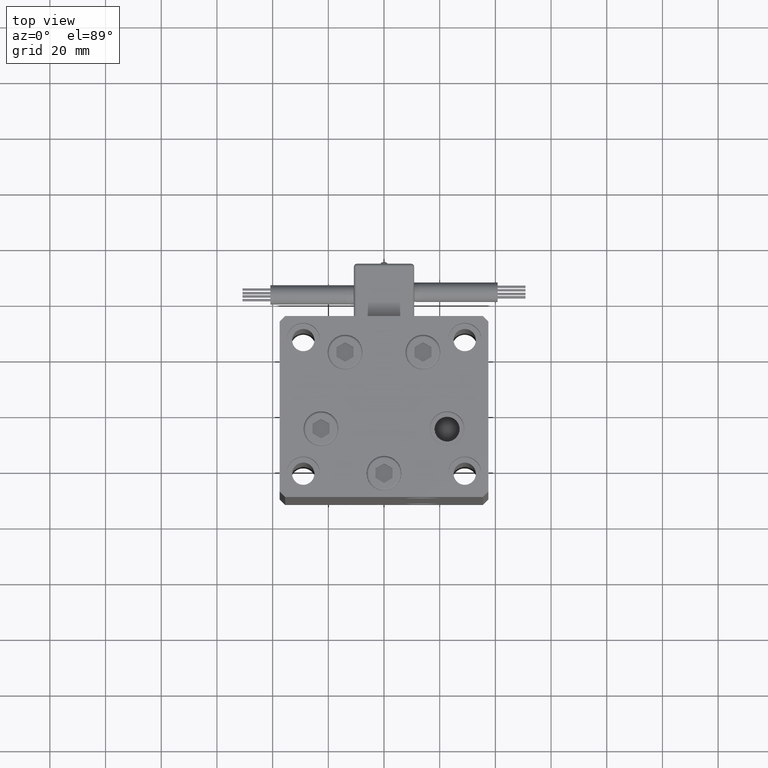
[diagram: clean part render]
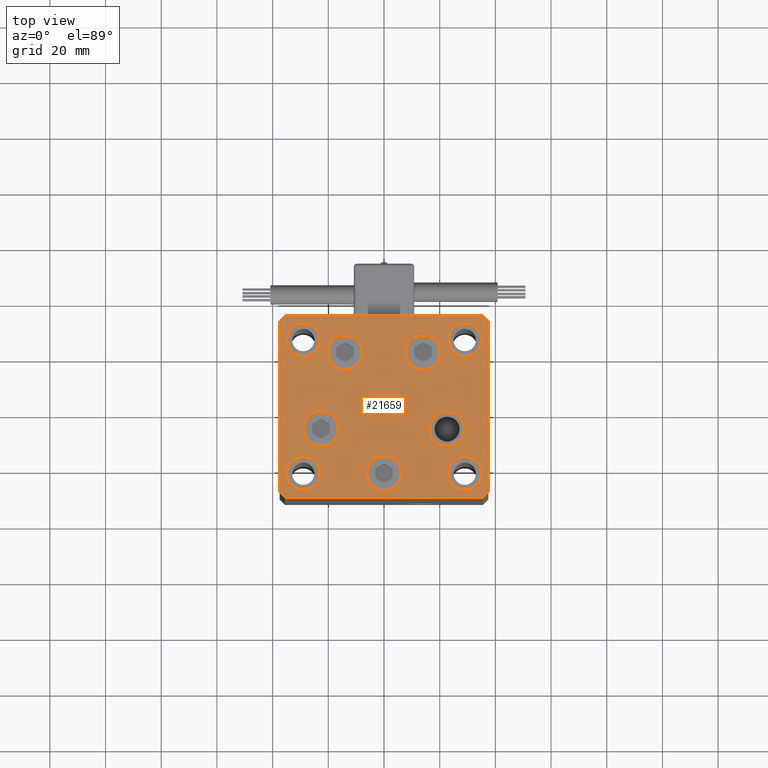
[diagram: same view with one face highlighted and labeled with its STEP entity id]
A machine part, top view. The second image highlights one B-rep face of the part: STEP entity #21659.
In plain terms, the highlighted planar face has unit normal (0, 0, 1).
Its self-contained STEP definition (entity closure, byte-faithful):
#126 = ORIENTED_EDGE ( 'NONE', *, *, #9208, .T. ) ;
#290 = CARTESIAN_POINT ( 'NONE',  ( 7.741068579633223479, 19.50000000000000000, 0.000000000000000000 ) ) ;
#913 = EDGE_CURVE ( 'NONE', #22626, #6738, #15562, .T. ) ;
#966 = CARTESIAN_POINT ( 'NONE',  ( 29.00000000000001066, 24.00000000000000711, 0.000000000000000000 ) ) ;
#992 = EDGE_LOOP ( 'NONE', ( #22904, #38191, #3899, #44121, #21908, #38364, #21112, #2139 ) ) ;
#1396 = CARTESIAN_POINT ( 'NONE',  ( 13.99106857963322348, 19.50000000000000000, 0.000000000000000000 ) ) ;
#1410 = CARTESIAN_POINT ( 'NONE',  ( 23.00000000000001066, 24.00000000000000711, 0.000000000000000000 ) ) ;
#1493 = EDGE_CURVE ( 'NONE', #12555, #18939, #7660, .T. ) ;
#1679 = DIRECTION ( 'NONE',  ( 0.000000000000000000, -0.000000000000000000, -1.000000000000000000 ) ) ;
#1937 = DIRECTION ( 'NONE',  ( 1.000000000000000000, 0.000000000000000000, 0.000000000000000000 ) ) ;
#1947 = VERTEX_POINT ( 'NONE', #28567 ) ;
#1973 = CARTESIAN_POINT ( 'NONE',  ( -35.49999999999998579, -32.50000000000001421, 0.000000000000000000 ) ) ;
#1998 = CARTESIAN_POINT ( 'NONE',  ( -28.87741699796952233, -8.000000000000005329, 0.000000000000000000 ) ) ;
#2139 = ORIENTED_EDGE ( 'NONE', *, *, #35726, .T. ) ;
#2685 = VERTEX_POINT ( 'NONE', #290 ) ;
#2789 = CARTESIAN_POINT ( 'NONE',  ( 35.49999999999992184, 32.50000000000000711, 0.000000000000000000 ) ) ;
#2837 = CARTESIAN_POINT ( 'NONE',  ( 2.939152317953647500E-15, -24.00000000000000000, 0.000000000000000000 ) ) ;
#2865 = VERTEX_POINT ( 'NONE', #23419 ) ;
#3075 = FACE_BOUND ( 'NONE', #47109, .T. ) ;
#3116 = DIRECTION ( 'NONE',  ( 0.000000000000000000, 0.000000000000000000, 1.000000000000000000 ) ) ;
#3282 = CIRCLE ( 'NONE', #26727, 6.250000000000001776 ) ;
#3424 = VERTEX_POINT ( 'NONE', #26011 ) ;
#3604 = EDGE_LOOP ( 'NONE', ( #26764, #34467 ) ) ;
#3899 = ORIENTED_EDGE ( 'NONE', *, *, #27531, .T. ) ;
#4019 = EDGE_LOOP ( 'NONE', ( #40567, #6898 ) ) ;
#4020 = DIRECTION ( 'NONE',  ( 1.000000000000000000, 9.773090005503140331E-17, 0.000000000000000000 ) ) ;
#4398 = CARTESIAN_POINT ( 'NONE',  ( -13.99106857963322703, 19.49999999999999645, 0.000000000000000000 ) ) ;
#4806 = AXIS2_PLACEMENT_3D ( 'NONE', #20236, #37096, #1937 ) ;
#4877 = DIRECTION ( 'NONE',  ( 1.000000000000000000, 0.000000000000000000, 0.000000000000000000 ) ) ;
#5314 = CARTESIAN_POINT ( 'NONE',  ( -7.741068579633227031, 19.49999999999999645, 0.000000000000000000 ) ) ;
#5589 = EDGE_CURVE ( 'NONE', #53230, #21700, #44348, .T. ) ;
#5916 = VECTOR ( 'NONE', #21865, 999.9999999999998863 ) ;
#6130 = AXIS2_PLACEMENT_3D ( 'NONE', #53208, #3116, #48029 ) ;
#6601 = ORIENTED_EDGE ( 'NONE', *, *, #11821, .F. ) ;
#6738 = VERTEX_POINT ( 'NONE', #39645 ) ;
#6898 = ORIENTED_EDGE ( 'NONE', *, *, #37627, .T. ) ;
#7147 = FACE_OUTER_BOUND ( 'NONE', #992, .T. ) ;
#7399 = CIRCLE ( 'NONE', #4806, 6.250000000000001776 ) ;
#7660 = CIRCLE ( 'NONE', #37252, 6.250000000000001776 ) ;
#7689 = CARTESIAN_POINT ( 'NONE',  ( 37.50000000000001421, -30.50000000000000711, 0.000000000000000000 ) ) ;
#8098 = AXIS2_PLACEMENT_3D ( 'NONE', #27835, #51328, #36253 ) ;
#8157 = EDGE_CURVE ( 'NONE', #19643, #12923, #33125, .T. ) ;
#9003 = DIRECTION ( 'NONE',  ( 0.000000000000000000, -0.000000000000000000, -1.000000000000000000 ) ) ;
#9208 = EDGE_CURVE ( 'NONE', #50544, #1947, #15755, .T. ) ;
#9316 = LINE ( 'NONE', #25938, #5916 ) ;
#10128 = DIRECTION ( 'NONE',  ( -1.000000000000000000, -1.954618001100629052E-16, 0.000000000000000000 ) ) ;
#10415 = AXIS2_PLACEMENT_3D ( 'NONE', #34804, #39151, #17952 ) ;
#10484 = VERTEX_POINT ( 'NONE', #35301 ) ;
#10975 = FACE_BOUND ( 'NONE', #42780, .T. ) ;
#11077 = CARTESIAN_POINT ( 'NONE',  ( -29.00000000000001066, -23.99999999999999289, 0.000000000000000000 ) ) ;
#11247 = FACE_BOUND ( 'NONE', #4019, .T. ) ;
#11344 = VECTOR ( 'NONE', #53811, 1000.000000000000114 ) ;
#11734 = CIRCLE ( 'NONE', #48212, 6.250000000000000000 ) ;
#11771 = AXIS2_PLACEMENT_3D ( 'NONE', #11077, #22795, #39374 ) ;
#11821 = EDGE_CURVE ( 'NONE', #12923, #19643, #34112, .T. ) ;
#11857 = ORIENTED_EDGE ( 'NONE', *, *, #37386, .F. ) ;
#12084 = VECTOR ( 'NONE', #4020, 1000.000000000000000 ) ;
#12322 = DIRECTION ( 'NONE',  ( 0.000000000000000000, 0.000000000000000000, 1.000000000000000000 ) ) ;
#12555 = VERTEX_POINT ( 'NONE', #1998 ) ;
#12891 = DIRECTION ( 'NONE',  ( 0.000000000000000000, -0.000000000000000000, -1.000000000000000000 ) ) ;
#12923 = VERTEX_POINT ( 'NONE', #19642 ) ;
#13056 = CARTESIAN_POINT ( 'NONE',  ( 29.00000000000001066, 24.00000000000000711, 0.000000000000000000 ) ) ;
#13937 = DIRECTION ( 'NONE',  ( 0.000000000000000000, -0.000000000000000000, -1.000000000000000000 ) ) ;
#14249 = CIRCLE ( 'NONE', #15136, 6.250000000000001776 ) ;
#14362 = AXIS2_PLACEMENT_3D ( 'NONE', #2837, #51579, #30888 ) ;
#14695 = EDGE_CURVE ( 'NONE', #18939, #12555, #14249, .T. ) ;
#14798 = FACE_BOUND ( 'NONE', #34604, .T. ) ;
#15136 = AXIS2_PLACEMENT_3D ( 'NONE', #51348, #47238, #38278 ) ;
#15274 = AXIS2_PLACEMENT_3D ( 'NONE', #31390, #40365, #27317 ) ;
#15562 = LINE ( 'NONE', #39772, #20707 ) ;
#15682 = CARTESIAN_POINT ( 'NONE',  ( -35.50000000000002842, 32.49999999999999289, 0.000000000000000000 ) ) ;
#15755 = CIRCLE ( 'NONE', #17506, 6.250000000000000000 ) ;
#15762 = DIRECTION ( 'NONE',  ( 0.000000000000000000, -0.000000000000000000, -1.000000000000000000 ) ) ;
#16066 = EDGE_CURVE ( 'NONE', #21780, #2685, #17764, .T. ) ;
#16394 = CIRCLE ( 'NONE', #19002, 5.999999999999998224 ) ;
#16570 = DIRECTION ( 'NONE',  ( 1.000000000000000000, 0.000000000000000000, 0.000000000000000000 ) ) ;
#16745 = EDGE_CURVE ( 'NONE', #2865, #28268, #11734, .T. ) ;
#16753 = VERTEX_POINT ( 'NONE', #1410 ) ;
#17099 = VERTEX_POINT ( 'NONE', #39747 ) ;
#17506 = AXIS2_PLACEMENT_3D ( 'NONE', #20124, #19851, #36443 ) ;
#17596 = DIRECTION ( 'NONE',  ( 0.000000000000000000, 0.000000000000000000, 1.000000000000000000 ) ) ;
#17612 = AXIS2_PLACEMENT_3D ( 'NONE', #40908, #12322, #41439 ) ;
#17764 = CIRCLE ( 'NONE', #26471, 6.250000000000000000 ) ;
#17843 = VECTOR ( 'NONE', #44153, 1000.000000000000000 ) ;
#17879 = CIRCLE ( 'NONE', #11771, 5.999999999999998224 ) ;
#17926 = CARTESIAN_POINT ( 'NONE',  ( 28.87741699796952233, -8.000000000000000000, 0.000000000000000000 ) ) ;
#17952 = DIRECTION ( 'NONE',  ( 1.000000000000000000, 0.000000000000000000, 0.000000000000000000 ) ) ;
#18538 = CIRCLE ( 'NONE', #8098, 6.000000000000005329 ) ;
#18851 = LINE ( 'NONE', #51788, #27472 ) ;
#18875 = AXIS2_PLACEMENT_3D ( 'NONE', #28822, #15762, #16570 ) ;
#18883 = FACE_BOUND ( 'NONE', #52965, .T. ) ;
#18939 = VERTEX_POINT ( 'NONE', #44538 ) ;
#19002 = AXIS2_PLACEMENT_3D ( 'NONE', #42810, #38455, #35168 ) ;
#19162 = FACE_BOUND ( 'NONE', #30276, .T. ) ;
#19642 = CARTESIAN_POINT ( 'NONE',  ( -35.00000000000000711, 24.00000000000000711, 0.000000000000000000 ) ) ;
#19643 = VERTEX_POINT ( 'NONE', #26736 ) ;
#19682 = CARTESIAN_POINT ( 'NONE',  ( 23.00000000000001066, -23.99999999999999289, 0.000000000000000000 ) ) ;
#19851 = DIRECTION ( 'NONE',  ( 0.000000000000000000, -0.000000000000000000, -1.000000000000000000 ) ) ;
#20124 = CARTESIAN_POINT ( 'NONE',  ( -13.99106857963322703, 19.49999999999999645, 0.000000000000000000 ) ) ;
#20236 = CARTESIAN_POINT ( 'NONE',  ( 22.62741699796951877, -8.000000000000000000, 0.000000000000000000 ) ) ;
#20333 = LINE ( 'NONE', #36922, #11344 ) ;
#20493 = DIRECTION ( 'NONE',  ( 0.7071067811865487940, 0.7071067811865463515, 0.000000000000000000 ) ) ;
#20707 = VECTOR ( 'NONE', #52314, 1000.000000000000000 ) ;
#20919 = LINE ( 'NONE', #24727, #12084 ) ;
#21008 = CARTESIAN_POINT ( 'NONE',  ( 35.00000000000001421, 24.00000000000000711, 0.000000000000000000 ) ) ;
#21068 = CARTESIAN_POINT ( 'NONE',  ( -22.62741699796951877, -8.000000000000005329, 0.000000000000000000 ) ) ;
#21112 = ORIENTED_EDGE ( 'NONE', *, *, #24052, .T. ) ;
#21644 = ORIENTED_EDGE ( 'NONE', *, *, #43587, .T. ) ;
#21659 = ADVANCED_FACE ( 'NONE', ( #18883, #14798, #19162, #11247, #27586, #3075, #51819, #22699, #10975, #7147 ), #44454, .T. ) ;
#21700 = VERTEX_POINT ( 'NONE', #49330 ) ;
#21764 = ORIENTED_EDGE ( 'NONE', *, *, #39750, .T. ) ;
#21780 = VERTEX_POINT ( 'NONE', #46580 ) ;
#21865 = DIRECTION ( 'NONE',  ( -0.7071067811865482389, 0.7071067811865469066, 0.000000000000000000 ) ) ;
#21878 = ORIENTED_EDGE ( 'NONE', *, *, #16066, .T. ) ;
#21908 = ORIENTED_EDGE ( 'NONE', *, *, #46356, .T. ) ;
#22090 = VERTEX_POINT ( 'NONE', #24725 ) ;
#22626 = VERTEX_POINT ( 'NONE', #7689 ) ;
#22699 = FACE_BOUND ( 'NONE', #46598, .T. ) ;
#22795 = DIRECTION ( 'NONE',  ( 0.000000000000000000, 0.000000000000000000, 1.000000000000000000 ) ) ;
#22904 = ORIENTED_EDGE ( 'NONE', *, *, #50893, .T. ) ;
#23268 = CARTESIAN_POINT ( 'NONE',  ( -37.50000000000001421, 30.49999999999998579, 0.000000000000000000 ) ) ;
#23419 = CARTESIAN_POINT ( 'NONE',  ( -6.249999999999997335, -24.00000000000000000, 0.000000000000000000 ) ) ;
#24052 = EDGE_CURVE ( 'NONE', #17099, #34328, #37160, .T. ) ;
#24601 = CARTESIAN_POINT ( 'NONE',  ( 2.939152317953647500E-15, -24.00000000000000000, 0.000000000000000000 ) ) ;
#24658 = DIRECTION ( 'NONE',  ( -0.7071067811865426878, -0.7071067811865524577, 0.000000000000000000 ) ) ;
#24725 = CARTESIAN_POINT ( 'NONE',  ( 16.37741699796951877, -8.000000000000000000, 0.000000000000000000 ) ) ;
#24727 = CARTESIAN_POINT ( 'NONE',  ( -35.49999999999998579, -32.50000000000001421, 0.000000000000000000 ) ) ;
#25367 = DIRECTION ( 'NONE',  ( 1.000000000000000000, 0.000000000000000000, 0.000000000000000000 ) ) ;
#25938 = CARTESIAN_POINT ( 'NONE',  ( 37.49999999999992184, 30.50000000000001066, 0.000000000000000000 ) ) ;
#26011 = CARTESIAN_POINT ( 'NONE',  ( -35.00000000000000711, -23.99999999999999289, 0.000000000000000000 ) ) ;
#26198 = DIRECTION ( 'NONE',  ( 1.000000000000000000, 0.000000000000000000, 0.000000000000000000 ) ) ;
#26471 = AXIS2_PLACEMENT_3D ( 'NONE', #1396, #13937, #34873 ) ;
#26727 = AXIS2_PLACEMENT_3D ( 'NONE', #51977, #44075, #31279 ) ;
#26736 = CARTESIAN_POINT ( 'NONE',  ( -23.00000000000001421, 24.00000000000000711, 0.000000000000000000 ) ) ;
#26764 = ORIENTED_EDGE ( 'NONE', *, *, #1493, .T. ) ;
#26989 = ORIENTED_EDGE ( 'NONE', *, *, #27010, .F. ) ;
#27010 = EDGE_CURVE ( 'NONE', #41733, #16753, #46798, .T. ) ;
#27317 = DIRECTION ( 'NONE',  ( 1.000000000000000000, 0.000000000000000000, 0.000000000000000000 ) ) ;
#27472 = VECTOR ( 'NONE', #10128, 1000.000000000000000 ) ;
#27531 = EDGE_CURVE ( 'NONE', #40107, #22626, #49057, .T. ) ;
#27586 = FACE_BOUND ( 'NONE', #3604, .T. ) ;
#27835 = CARTESIAN_POINT ( 'NONE',  ( 29.00000000000001066, -23.99999999999999289, 0.000000000000000000 ) ) ;
#28052 = EDGE_CURVE ( 'NONE', #29926, #40107, #20919, .T. ) ;
#28268 = VERTEX_POINT ( 'NONE', #43721 ) ;
#28393 = CARTESIAN_POINT ( 'NONE',  ( 35.50000000000000711, -32.50000000000000711, 0.000000000000000000 ) ) ;
#28567 = CARTESIAN_POINT ( 'NONE',  ( -20.24106857963322881, 19.49999999999999645, 0.000000000000000000 ) ) ;
#28822 = CARTESIAN_POINT ( 'NONE',  ( 13.99106857963322348, 19.50000000000000000, 0.000000000000000000 ) ) ;
#29340 = CIRCLE ( 'NONE', #18875, 6.250000000000000000 ) ;
#29454 = EDGE_CURVE ( 'NONE', #16753, #41733, #31227, .T. ) ;
#29495 = DIRECTION ( 'NONE',  ( 1.000000000000000000, 0.000000000000000000, 0.000000000000000000 ) ) ;
#29926 = VERTEX_POINT ( 'NONE', #1973 ) ;
#29992 = EDGE_LOOP ( 'NONE', ( #31967, #11857 ) ) ;
#30276 = EDGE_LOOP ( 'NONE', ( #40693, #21764 ) ) ;
#30885 = CIRCLE ( 'NONE', #14362, 6.250000000000000000 ) ;
#30888 = DIRECTION ( 'NONE',  ( 1.000000000000000000, 0.000000000000000000, 0.000000000000000000 ) ) ;
#31008 = CARTESIAN_POINT ( 'NONE',  ( 35.50000000000000711, -32.50000000000000711, 0.000000000000000000 ) ) ;
#31089 = CARTESIAN_POINT ( 'NONE',  ( -37.50000000000001421, 30.49999999999998579, 0.000000000000000000 ) ) ;
#31227 = CIRCLE ( 'NONE', #47735, 6.000000000000005329 ) ;
#31279 = DIRECTION ( 'NONE',  ( 1.000000000000000000, 0.000000000000000000, 0.000000000000000000 ) ) ;
#31390 = CARTESIAN_POINT ( 'NONE',  ( 0.000000000000000000, 0.000000000000000000, 0.000000000000000000 ) ) ;
#31959 = EDGE_CURVE ( 'NONE', #21700, #53230, #18538, .T. ) ;
#31967 = ORIENTED_EDGE ( 'NONE', *, *, #47172, .F. ) ;
#33125 = CIRCLE ( 'NONE', #6130, 5.999999999999998224 ) ;
#34112 = CIRCLE ( 'NONE', #17612, 5.999999999999998224 ) ;
#34328 = VERTEX_POINT ( 'NONE', #23268 ) ;
#34467 = ORIENTED_EDGE ( 'NONE', *, *, #14695, .T. ) ;
#34604 = EDGE_LOOP ( 'NONE', ( #21644, #21878 ) ) ;
#34804 = CARTESIAN_POINT ( 'NONE',  ( 29.00000000000001066, -23.99999999999999289, 0.000000000000000000 ) ) ;
#34873 = DIRECTION ( 'NONE',  ( 1.000000000000000000, 0.000000000000000000, 0.000000000000000000 ) ) ;
#35168 = DIRECTION ( 'NONE',  ( 1.000000000000000000, 0.000000000000000000, 0.000000000000000000 ) ) ;
#35265 = ORIENTED_EDGE ( 'NONE', *, *, #31959, .F. ) ;
#35301 = CARTESIAN_POINT ( 'NONE',  ( -37.49999999999998579, -30.50000000000001421, 0.000000000000000000 ) ) ;
#35726 = EDGE_CURVE ( 'NONE', #34328, #10484, #44420, .T. ) ;
#36253 = DIRECTION ( 'NONE',  ( 1.000000000000000000, 0.000000000000000000, 0.000000000000000000 ) ) ;
#36362 = VECTOR ( 'NONE', #20493, 1000.000000000000000 ) ;
#36443 = DIRECTION ( 'NONE',  ( 1.000000000000000000, 0.000000000000000000, 0.000000000000000000 ) ) ;
#36603 = ORIENTED_EDGE ( 'NONE', *, *, #5589, .F. ) ;
#36922 = CARTESIAN_POINT ( 'NONE',  ( -37.49999999999998579, -30.50000000000001421, 0.000000000000000000 ) ) ;
#37093 = VECTOR ( 'NONE', #24658, 1000.000000000000000 ) ;
#37096 = DIRECTION ( 'NONE',  ( 0.000000000000000000, -0.000000000000000000, -1.000000000000000000 ) ) ;
#37160 = LINE ( 'NONE', #15682, #37093 ) ;
#37252 = AXIS2_PLACEMENT_3D ( 'NONE', #21068, #12891, #29495 ) ;
#37386 = EDGE_CURVE ( 'NONE', #3424, #50867, #17879, .T. ) ;
#37627 = EDGE_CURVE ( 'NONE', #28268, #2865, #30885, .T. ) ;
#37888 = ORIENTED_EDGE ( 'NONE', *, *, #8157, .F. ) ;
#37921 = EDGE_CURVE ( 'NONE', #53309, #17099, #18851, .T. ) ;
#38191 = ORIENTED_EDGE ( 'NONE', *, *, #28052, .T. ) ;
#38278 = DIRECTION ( 'NONE',  ( 1.000000000000000000, 0.000000000000000000, 0.000000000000000000 ) ) ;
#38364 = ORIENTED_EDGE ( 'NONE', *, *, #37921, .T. ) ;
#38455 = DIRECTION ( 'NONE',  ( 0.000000000000000000, 0.000000000000000000, 1.000000000000000000 ) ) ;
#39058 = CIRCLE ( 'NONE', #53003, 6.250000000000000000 ) ;
#39151 = DIRECTION ( 'NONE',  ( 0.000000000000000000, 0.000000000000000000, 1.000000000000000000 ) ) ;
#39213 = ORIENTED_EDGE ( 'NONE', *, *, #52493, .T. ) ;
#39374 = DIRECTION ( 'NONE',  ( 1.000000000000000000, 0.000000000000000000, 0.000000000000000000 ) ) ;
#39645 = CARTESIAN_POINT ( 'NONE',  ( 37.49999999999992184, 30.50000000000001066, 0.000000000000000000 ) ) ;
#39747 = CARTESIAN_POINT ( 'NONE',  ( -35.50000000000002842, 32.49999999999999289, 0.000000000000000000 ) ) ;
#39750 = EDGE_CURVE ( 'NONE', #42117, #22090, #7399, .T. ) ;
#39772 = CARTESIAN_POINT ( 'NONE',  ( 37.50000000000001421, -30.50000000000000711, 0.000000000000000000 ) ) ;
#40107 = VERTEX_POINT ( 'NONE', #31008 ) ;
#40365 = DIRECTION ( 'NONE',  ( -0.000000000000000000, 0.000000000000000000, 1.000000000000000000 ) ) ;
#40567 = ORIENTED_EDGE ( 'NONE', *, *, #16745, .T. ) ;
#40693 = ORIENTED_EDGE ( 'NONE', *, *, #45596, .T. ) ;
#40908 = CARTESIAN_POINT ( 'NONE',  ( -29.00000000000001066, 24.00000000000000711, 0.000000000000000000 ) ) ;
#41276 = CARTESIAN_POINT ( 'NONE',  ( -23.00000000000001421, -23.99999999999999289, 0.000000000000000000 ) ) ;
#41439 = DIRECTION ( 'NONE',  ( 1.000000000000000000, 0.000000000000000000, 0.000000000000000000 ) ) ;
#41733 = VERTEX_POINT ( 'NONE', #21008 ) ;
#42117 = VERTEX_POINT ( 'NONE', #17926 ) ;
#42173 = DIRECTION ( 'NONE',  ( 0.000000000000000000, 0.000000000000000000, 1.000000000000000000 ) ) ;
#42780 = EDGE_LOOP ( 'NONE', ( #26989, #48194 ) ) ;
#42810 = CARTESIAN_POINT ( 'NONE',  ( -29.00000000000001066, -23.99999999999999289, 0.000000000000000000 ) ) ;
#43587 = EDGE_CURVE ( 'NONE', #2685, #21780, #29340, .T. ) ;
#43721 = CARTESIAN_POINT ( 'NONE',  ( 6.250000000000002665, -24.00000000000000000, 0.000000000000000000 ) ) ;
#44075 = DIRECTION ( 'NONE',  ( 0.000000000000000000, -0.000000000000000000, -1.000000000000000000 ) ) ;
#44121 = ORIENTED_EDGE ( 'NONE', *, *, #913, .T. ) ;
#44153 = DIRECTION ( 'NONE',  ( 4.550094363217855288E-16, -1.000000000000000000, 0.000000000000000000 ) ) ;
#44348 = CIRCLE ( 'NONE', #10415, 6.000000000000005329 ) ;
#44420 = LINE ( 'NONE', #31089, #17843 ) ;
#44454 = PLANE ( 'NONE',  #15274 ) ;
#44538 = CARTESIAN_POINT ( 'NONE',  ( -16.37741699796951877, -8.000000000000005329, 0.000000000000000000 ) ) ;
#45061 = AXIS2_PLACEMENT_3D ( 'NONE', #13056, #42173, #4877 ) ;
#45596 = EDGE_CURVE ( 'NONE', #22090, #42117, #3282, .T. ) ;
#46356 = EDGE_CURVE ( 'NONE', #6738, #53309, #9316, .T. ) ;
#46580 = CARTESIAN_POINT ( 'NONE',  ( 20.24106857963322526, 19.50000000000000000, 0.000000000000000000 ) ) ;
#46598 = EDGE_LOOP ( 'NONE', ( #37888, #6601 ) ) ;
#46798 = CIRCLE ( 'NONE', #45061, 6.000000000000005329 ) ;
#47109 = EDGE_LOOP ( 'NONE', ( #35265, #36603 ) ) ;
#47172 = EDGE_CURVE ( 'NONE', #50867, #3424, #16394, .T. ) ;
#47238 = DIRECTION ( 'NONE',  ( 0.000000000000000000, -0.000000000000000000, -1.000000000000000000 ) ) ;
#47735 = AXIS2_PLACEMENT_3D ( 'NONE', #966, #17596, #51867 ) ;
#48029 = DIRECTION ( 'NONE',  ( 1.000000000000000000, 0.000000000000000000, 0.000000000000000000 ) ) ;
#48194 = ORIENTED_EDGE ( 'NONE', *, *, #29454, .F. ) ;
#48212 = AXIS2_PLACEMENT_3D ( 'NONE', #24601, #1679, #26198 ) ;
#49057 = LINE ( 'NONE', #28393, #36362 ) ;
#49330 = CARTESIAN_POINT ( 'NONE',  ( 35.00000000000001421, -23.99999999999999289, 0.000000000000000000 ) ) ;
#50544 = VERTEX_POINT ( 'NONE', #5314 ) ;
#50867 = VERTEX_POINT ( 'NONE', #41276 ) ;
#50893 = EDGE_CURVE ( 'NONE', #10484, #29926, #20333, .T. ) ;
#51328 = DIRECTION ( 'NONE',  ( 0.000000000000000000, 0.000000000000000000, 1.000000000000000000 ) ) ;
#51348 = CARTESIAN_POINT ( 'NONE',  ( -22.62741699796951877, -8.000000000000005329, 0.000000000000000000 ) ) ;
#51579 = DIRECTION ( 'NONE',  ( 0.000000000000000000, -0.000000000000000000, -1.000000000000000000 ) ) ;
#51788 = CARTESIAN_POINT ( 'NONE',  ( 35.49999999999992184, 32.50000000000000711, 0.000000000000000000 ) ) ;
#51819 = FACE_BOUND ( 'NONE', #29992, .T. ) ;
#51867 = DIRECTION ( 'NONE',  ( 1.000000000000000000, 0.000000000000000000, 0.000000000000000000 ) ) ;
#51977 = CARTESIAN_POINT ( 'NONE',  ( 22.62741699796951877, -8.000000000000000000, 0.000000000000000000 ) ) ;
#52314 = DIRECTION ( 'NONE',  ( -1.478780668045802821E-15, 1.000000000000000000, 0.000000000000000000 ) ) ;
#52493 = EDGE_CURVE ( 'NONE', #1947, #50544, #39058, .T. ) ;
#52965 = EDGE_LOOP ( 'NONE', ( #39213, #126 ) ) ;
#53003 = AXIS2_PLACEMENT_3D ( 'NONE', #4398, #9003, #25367 ) ;
#53208 = CARTESIAN_POINT ( 'NONE',  ( -29.00000000000001066, 24.00000000000000711, 0.000000000000000000 ) ) ;
#53230 = VERTEX_POINT ( 'NONE', #19682 ) ;
#53309 = VERTEX_POINT ( 'NONE', #2789 ) ;
#53811 = DIRECTION ( 'NONE',  ( 0.7071067811865474617, -0.7071067811865474617, 0.000000000000000000 ) ) ;